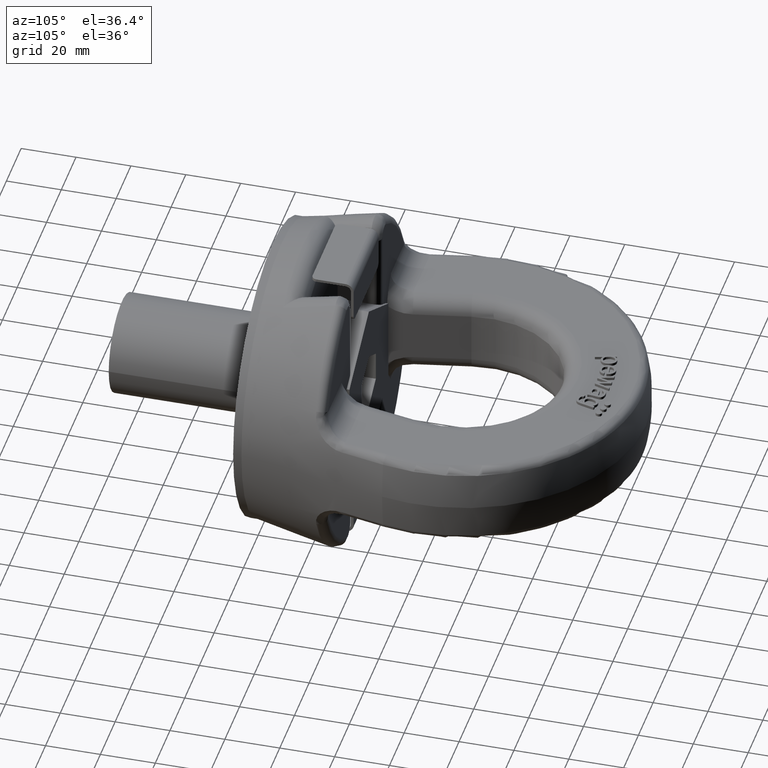
[diagram: clean part render]
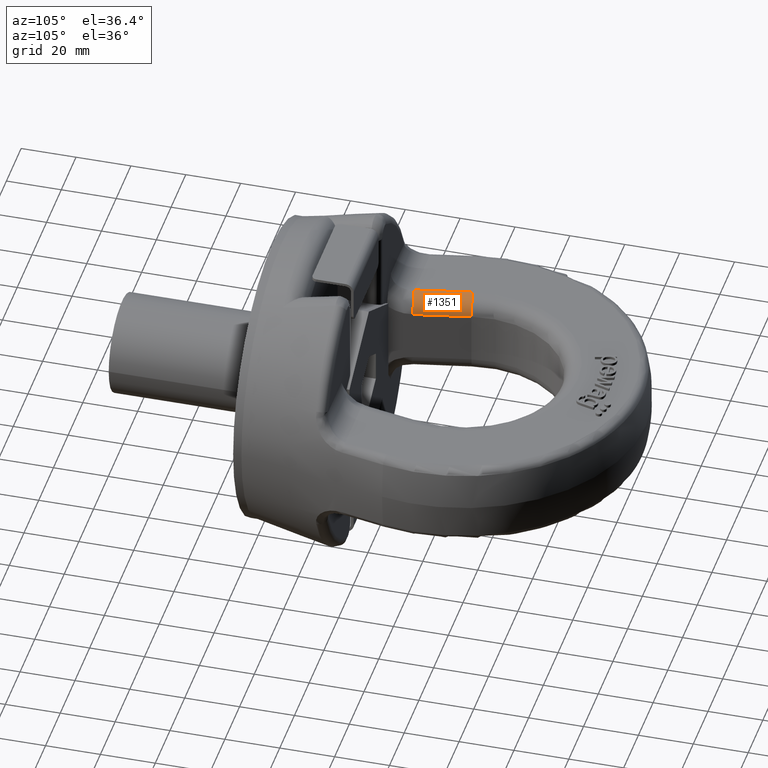
[diagram: same view with one face highlighted and labeled with its STEP entity id]
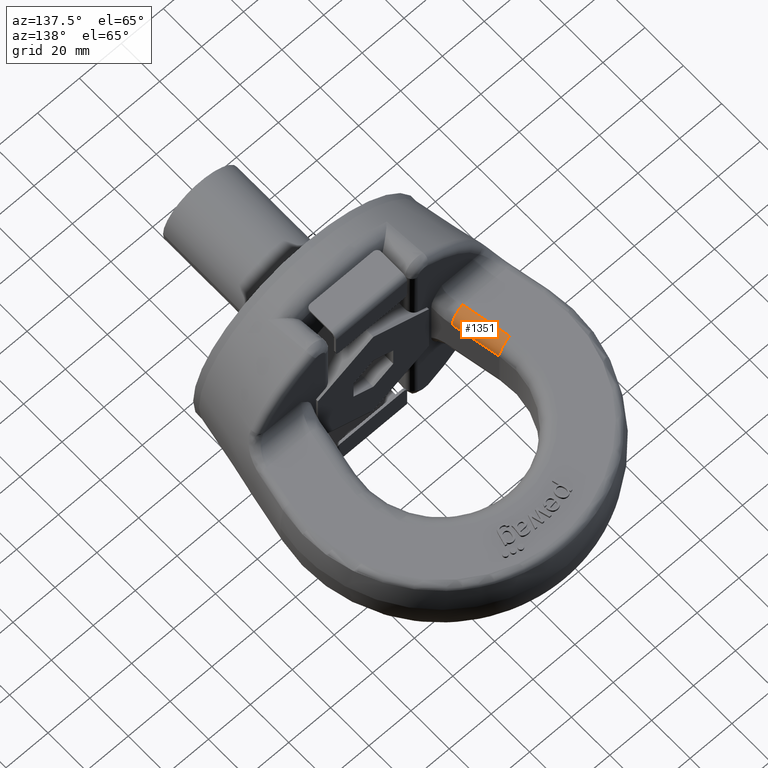
[diagram: same view with one face highlighted and labeled with its STEP entity id]
A machine part, auxiliary view. The second image highlights one B-rep face of the part: STEP entity #1351.
A second angle (auxiliary view) of the same face is appended — the face is thin or edge-on in the first view.
In plain terms, the highlighted cylindrical surface (edge-blend (fillet) strip) has radius 6.2 mm, axis along (0.1945, -0.9809, 0).
Its self-contained STEP definition (entity closure, byte-faithful):
#1063=CYLINDRICAL_SURFACE('',#5196,6.2);
#1127=FACE_OUTER_BOUND('',#1867,.T.);
#1351=ADVANCED_FACE('',(#1127),#1063,.T.);
#1702=CIRCLE('',#5194,6.2);
#1703=CIRCLE('',#5195,6.2);
#1867=EDGE_LOOP('',(#2972,#2973,#2974,#2975));
#2105=LINE('',#6419,#2385);
#2151=LINE('',#6878,#2431);
#2385=VECTOR('',#5413,1.);
#2431=VECTOR('',#5515,1.);
#2972=ORIENTED_EDGE('',*,*,#4446,.F.);
#2973=ORIENTED_EDGE('',*,*,#4399,.F.);
#2974=ORIENTED_EDGE('',*,*,#4447,.T.);
#2975=ORIENTED_EDGE('',*,*,#4303,.F.);
#3908=VERTEX_POINT('',#6399);
#3915=VERTEX_POINT('',#6418);
#4005=VERTEX_POINT('',#6873);
#4007=VERTEX_POINT('',#6879);
#4303=EDGE_CURVE('',#3915,#3908,#2105,.T.);
#4399=EDGE_CURVE('',#4005,#4007,#2151,.T.);
#4446=EDGE_CURVE('',#4007,#3915,#1702,.T.);
#4447=EDGE_CURVE('',#4005,#3908,#1703,.T.);
#5194=AXIS2_PLACEMENT_3D('',#7151,#5623,#5624);
#5195=AXIS2_PLACEMENT_3D('',#7182,#5625,#5626);
#5196=AXIS2_PLACEMENT_3D('',#7183,#5627,#5628);
#5413=DIRECTION('',(-0.194495808030769,0.980903349295158,-1.5192822032916E-16));
#5515=DIRECTION('',(0.194495808030769,-0.980903349295158,1.5192822032916E-16));
#5623=DIRECTION('',(0.194495808030767,-0.980903349295158,-2.19560782927302E-15));
#5624=DIRECTION('',(-0.980903349295158,-0.194495808030767,0.));
#5625=DIRECTION('',(0.194495808030769,-0.980903349295158,0.));
#5626=DIRECTION('',(-0.980903349295158,-0.194495808030769,0.));
#5627=DIRECTION('',(0.194495808030769,-0.980903349295158,1.5192822032916E-16));
#5628=DIRECTION('',(0.980903349295158,0.194495808030768,0.));
#6399=CARTESIAN_POINT('',(-40.4132179909605,61.9867727091324,15.5));
#6418=CARTESIAN_POINT('',(-36.4006234139047,41.75,15.5));
#6419=CARTESIAN_POINT('',(-40.4132179909605,61.9867727091323,15.5));
#6873=CARTESIAN_POINT('',(-34.3316172253305,63.1926467189231,9.30000000000002));
#6878=CARTESIAN_POINT('',(-30.079919132025,41.75,9.30000000000001));
#6879=CARTESIAN_POINT('',(-30.3190226482747,42.9558740097908,9.30000000000001));
#7151=CARTESIAN_POINT('',(-36.4006234139046,41.75,9.30000000000001));
#7182=CARTESIAN_POINT('',(-40.4132179909605,61.9867727091324,9.30000000000001));
#7183=CARTESIAN_POINT('',(-49.919241041492,109.92862782237,9.3));